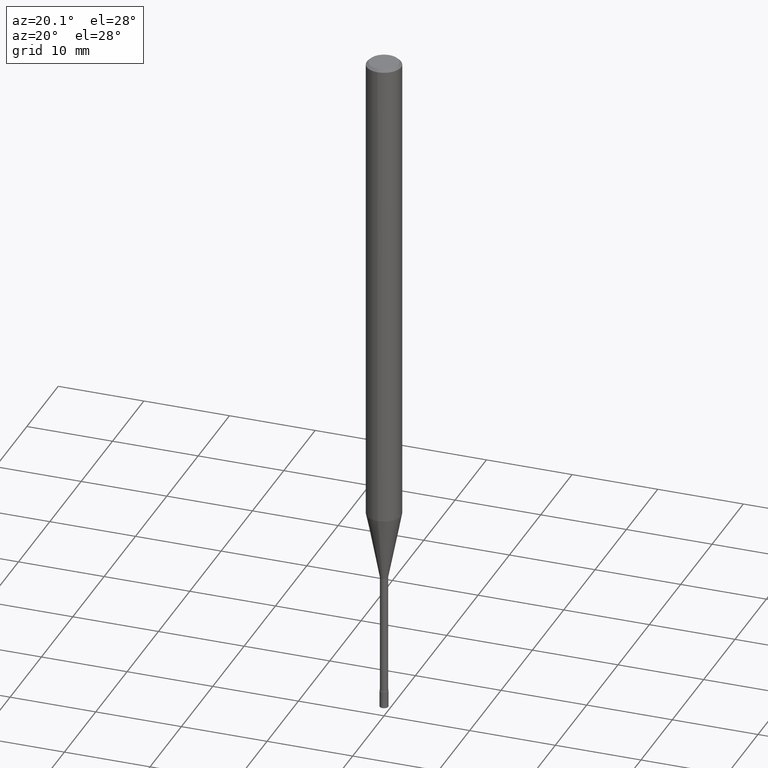
[diagram: clean part render]
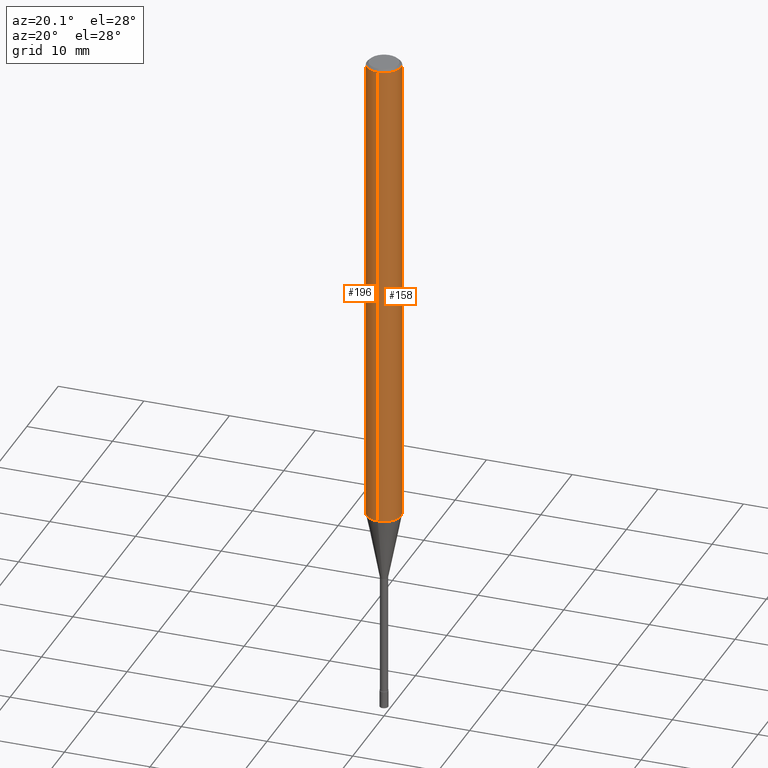
[diagram: same view with one multi-face feature highlighted, each face labeled with its STEP entity id]
A machine part, auxiliary view. The highlighted faces form ONE feature: a constant-radius fillet chain: 2 tangent blend faces with common blend radius 2 mm. The faces share edges in the B-rep.
Their STEP definitions:
[1] entity #158 (Cylinder):
#96=VERTEX_POINT('',#235);
#108=EDGE_CURVE('',#136,#128,#248,.T.);
#128=VERTEX_POINT('',#269);
#136=VERTEX_POINT('',#277);
#142=EDGE_CURVE('',#136,#96,#283,.T.);
#158=ADVANCED_FACE('',(#302),#303,.T.);
#172=VERTEX_POINT('',#320);
#186=EDGE_CURVE('',#128,#172,#337,.T.);
#194=EDGE_CURVE('',#172,#96,#346,.T.);
#235=CARTESIAN_POINT('',(2.44921270764475E-016,-2.0,-0.299999999999997));
#248=LINE('',#400,#401);
#269=CARTESIAN_POINT('',(0.0,2.0,-56.026));
#277=CARTESIAN_POINT('',(0.0,2.0,-0.299999999999997));
#283=CIRCLE('',#446,2.0);
#302=FACE_OUTER_BOUND('',#470,.T.);
#303=CYLINDRICAL_SURFACE('',#471,2.0);
#320=CARTESIAN_POINT('',(2.44921270764475E-016,-2.0,-56.026));
#337=CIRCLE('',#511,2.0);
#346=LINE('',#519,#520);
#400=CARTESIAN_POINT('',(-2.44921270764475E-016,2.0,-28.163));
#401=VECTOR('',#567,1.0);
#446=AXIS2_PLACEMENT_3D('',#598,#599,#600);
#470=EDGE_LOOP('',(#627,#628,#629,#630));
#471=AXIS2_PLACEMENT_3D('',#631,#632,#633);
#511=AXIS2_PLACEMENT_3D('',#682,#683,#684);
#519=CARTESIAN_POINT('',(2.44921270764475E-016,-2.0,-28.163));
#520=VECTOR('',#695,1.0);
#567=DIRECTION('',(0.0,0.0,-1.0));
#598=CARTESIAN_POINT('',(0.0,0.0,-0.299999999999997));
#599=DIRECTION('',(0.0,0.0,-1.0));
#600=DIRECTION('',(0.0,1.0,0.0));
#627=ORIENTED_EDGE('',*,*,#108,.F.);
#628=ORIENTED_EDGE('',*,*,#142,.T.);
#629=ORIENTED_EDGE('',*,*,#194,.F.);
#630=ORIENTED_EDGE('',*,*,#186,.F.);
#631=CARTESIAN_POINT('',(0.0,0.0,-28.163));
#632=DIRECTION('',(-0.0,-0.0,1.0));
#633=DIRECTION('',(0.0,1.0,0.0));
#682=CARTESIAN_POINT('',(0.0,0.0,-56.026));
#683=DIRECTION('',(0.0,0.0,-1.0));
#684=DIRECTION('',(0.0,1.0,0.0));
#695=DIRECTION('',(-0.0,-0.0,1.0));
[2] entity #196 (Cylinder):
#96=VERTEX_POINT('',#235);
#108=EDGE_CURVE('',#136,#128,#248,.T.);
#110=EDGE_CURVE('',#96,#136,#250,.T.);
#128=VERTEX_POINT('',#269);
#136=VERTEX_POINT('',#277);
#172=VERTEX_POINT('',#320);
#182=EDGE_CURVE('',#172,#128,#331,.T.);
#194=EDGE_CURVE('',#172,#96,#346,.T.);
#196=ADVANCED_FACE('',(#348),#349,.T.);
#235=CARTESIAN_POINT('',(2.44921270764475E-016,-2.0,-0.299999999999997));
#248=LINE('',#400,#401);
#250=CIRCLE('',#404,2.0);
#269=CARTESIAN_POINT('',(0.0,2.0,-56.026));
#277=CARTESIAN_POINT('',(0.0,2.0,-0.299999999999997));
#320=CARTESIAN_POINT('',(2.44921270764475E-016,-2.0,-56.026));
#331=CIRCLE('',#504,2.0);
#346=LINE('',#519,#520);
#348=FACE_OUTER_BOUND('',#522,.T.);
#349=CYLINDRICAL_SURFACE('',#523,2.0);
#400=CARTESIAN_POINT('',(-2.44921270764475E-016,2.0,-28.163));
#401=VECTOR('',#567,1.0);
#404=AXIS2_PLACEMENT_3D('',#568,#569,#570);
#504=AXIS2_PLACEMENT_3D('',#671,#672,#673);
#519=CARTESIAN_POINT('',(2.44921270764475E-016,-2.0,-28.163));
#520=VECTOR('',#695,1.0);
#522=EDGE_LOOP('',(#697,#698,#699,#700));
#523=AXIS2_PLACEMENT_3D('',#701,#702,#703);
#567=DIRECTION('',(0.0,0.0,-1.0));
#568=CARTESIAN_POINT('',(0.0,0.0,-0.299999999999997));
#569=DIRECTION('',(0.0,0.0,-1.0));
#570=DIRECTION('',(0.0,1.0,0.0));
#671=CARTESIAN_POINT('',(0.0,0.0,-56.026));
#672=DIRECTION('',(0.0,0.0,-1.0));
#673=DIRECTION('',(0.0,1.0,0.0));
#695=DIRECTION('',(-0.0,-0.0,1.0));
#697=ORIENTED_EDGE('',*,*,#108,.T.);
#698=ORIENTED_EDGE('',*,*,#182,.F.);
#699=ORIENTED_EDGE('',*,*,#194,.T.);
#700=ORIENTED_EDGE('',*,*,#110,.T.);
#701=CARTESIAN_POINT('',(0.0,0.0,-28.163));
#702=DIRECTION('',(-0.0,-0.0,1.0));
#703=DIRECTION('',(0.0,1.0,0.0));